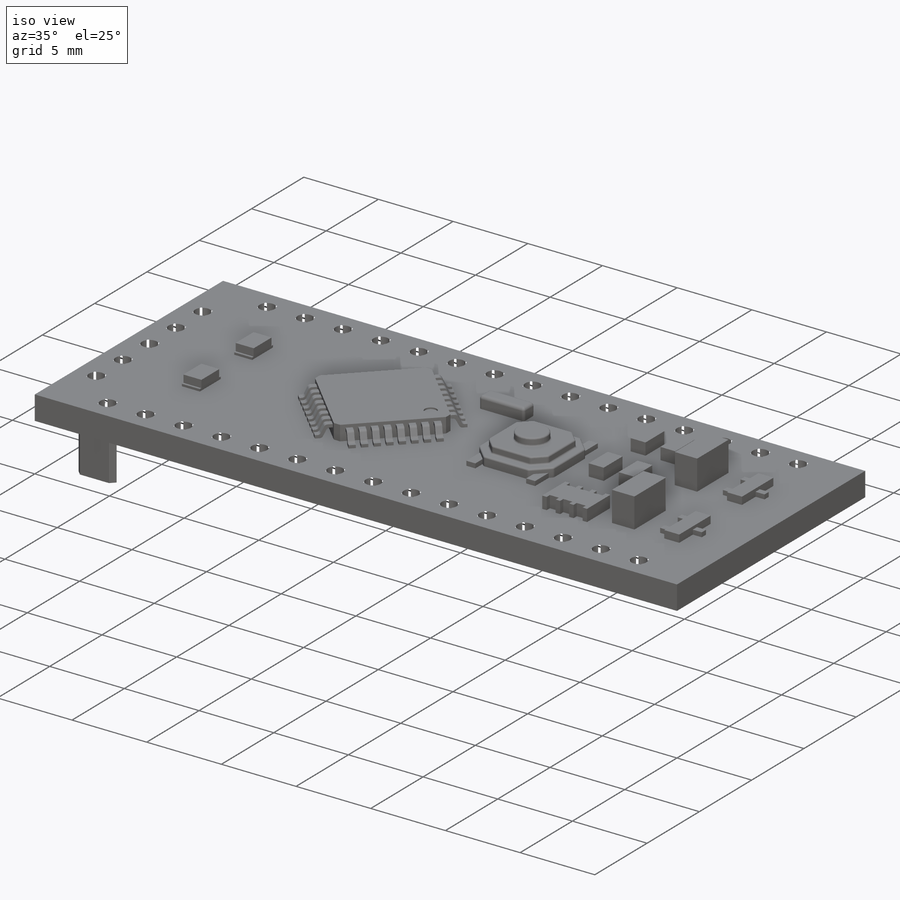
[diagram: iso view]
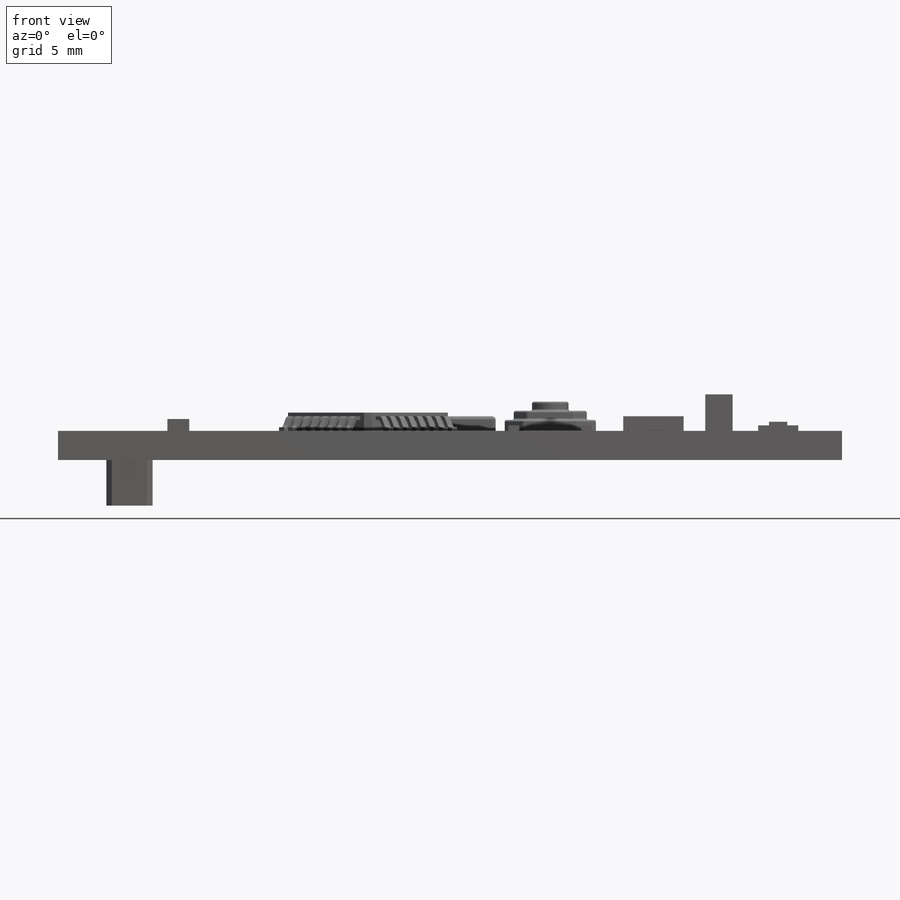
[diagram: front view]
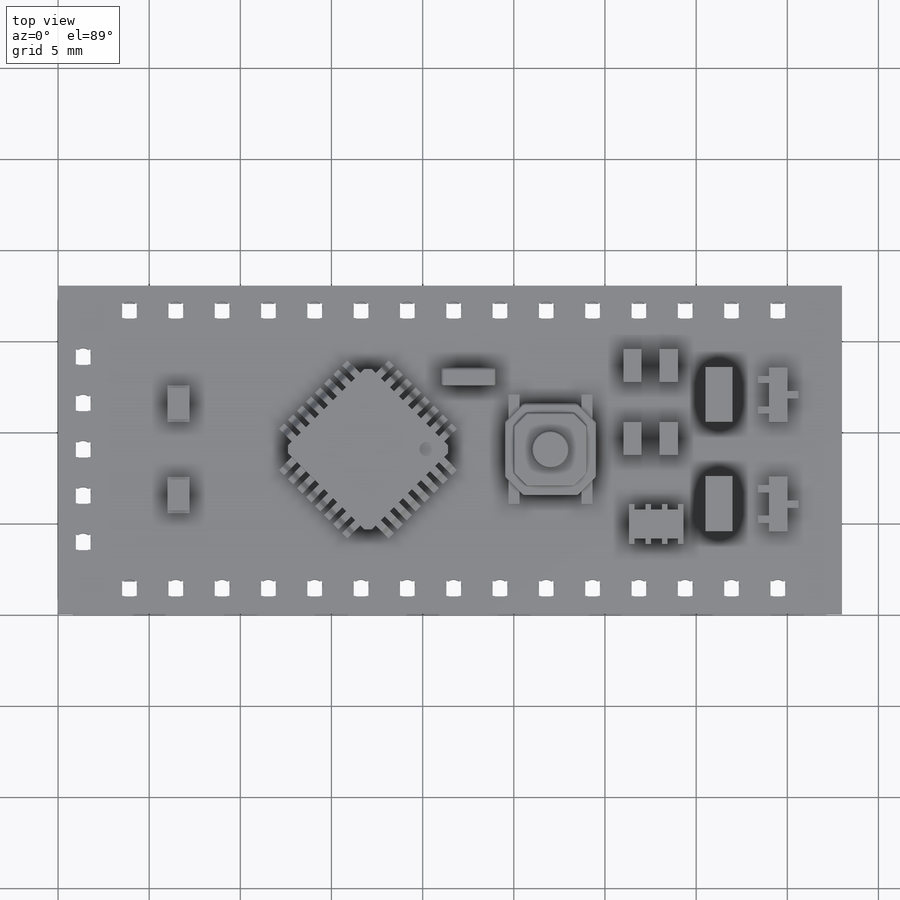
[diagram: top view]
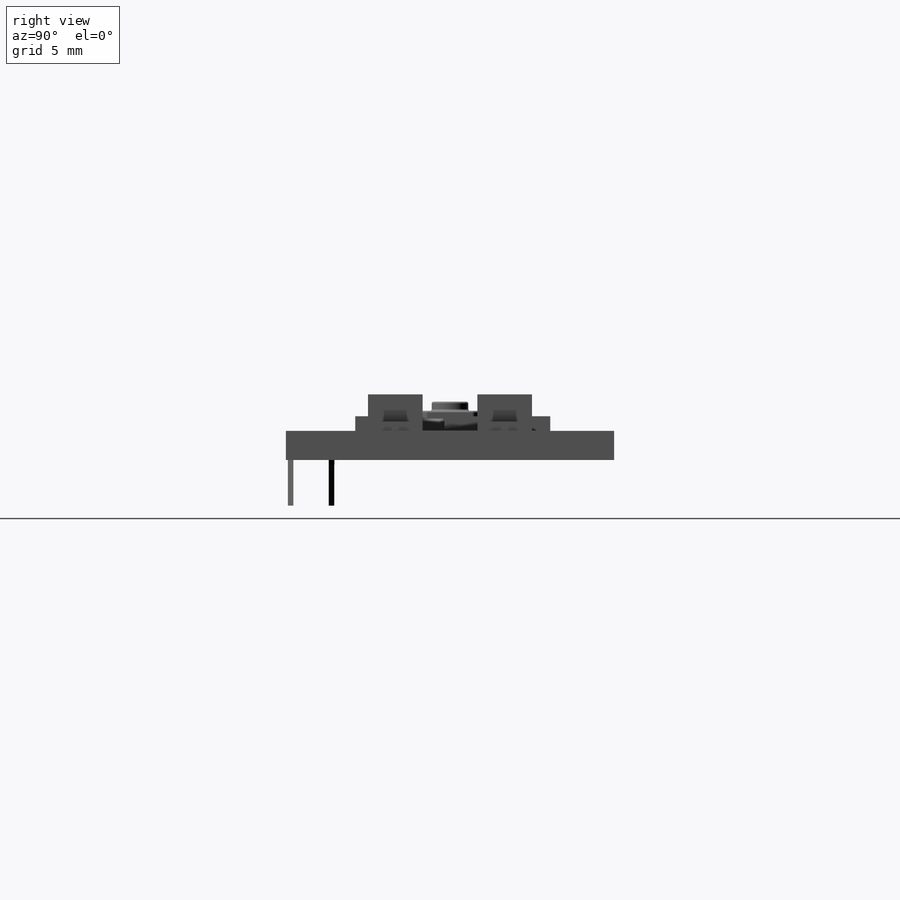
[diagram: right view]
SOLIDWORKS PART (.sldprt)
format: sldprt  version: not decoded by parser v0  size: 6,868,992 bytes
history: native  units: mm
features: sketch x22, extrude x19, plane x8, pattern_linear x6, fillet x4, chamfer x3, cut_extrude x2, material x1, pattern_circular x1 (+8 scaffold rows collapsed)
feature tree (74):
  scaffold x8  (default folders/planes/origin — collapsed)
  material  "材质 <未指定>"
  plane  "前视基准面"
  plane  "上视基准面"
  plane  "右视基准面"
  sketch  "草图1"  dims[D1=43.0mm D2=18.0mm]
  extrude  "凸台-拉伸1"  Depth=1.6mm
  sketch  "草图2"  dims[c1.D4=1.0mm c1.D7=1.0mm c1.D1=1.38mm c1.D2=1.2mm c1.D3=7.8mm c2.D2=7.62mm c2.D3=1.38mm c2.D8=2.54mm c2.D10=2.54mm c2.D5=3.0 c2.D6=3.0 c2.D9=15.0]
  cut_extrude  "切除-拉伸1"  Depth=1.6mm
  sketch  "草图3"  dims[D1=1.2mm D2=2.0mm D3=1.5mm D4=6.0mm]
  extrude  "凸台-拉伸2"  Depth=0.15mm
  sketch  "草图4"  dims[D1=6.5mm D2=6.5mm D3=17.0mm]
  extrude  "凸台-拉伸3"  Depth=1mm
  chamfer  "倒角1"  Distance=0.3mm Angle=45deg
  plane  "基准面2"  Offset=2.9mm
  sketch  "草图5"  dims[D6=0.2mm D1=0.3mm D2=0.4mm D3=~1.003777mm D4=0.6mm D5=0.2mm]
  extrude  "凸台-拉伸4"  Depth=0.4mm
  pattern_linear  "阵列(线性)1"  Count1=5 Count2=1 Spacing1=0.7mm Spacing2=10mm
  pattern_linear  "阵列(线性)2"  Count1=4 Count2=1 Spacing1=0.7mm Spacing2=10mm
  plane  "基准面4"
  plane  "基准面5"
  pattern_circular  "阵列(圆周)1"  Count=2 Angle=90deg
  sketch  "草图7"  dims[D5=0.15mm D1=3.0mm D2=1.0mm D3=4.5mm D4=21.0mm]
  extrude  "凸台-拉伸5"  Depth=0.8mm
  fillet  "圆角1"  Radius=0.2mm
  sketch  "草图8"  dims[D4=0.2mm D1=5.0mm D2=5.0mm D3=27.0mm]
  extrude  "凸台-拉伸6"  Depth=0.6mm
  sketch  "草图9"  dims[D2=0.2mm D1=0.5mm]
  extrude  "凸台-拉伸7"  Depth=0.5mm
  sketch  "草图10"  dims[D1=2.0mm]
  extrude  "凸台-拉伸8"  Depth=0.5mm
  sketch  "草图11"  dims[D1=1.5mm D2=1.5mm D3=0.6mm D4=1.7mm]
  extrude  "凸台-拉伸9"  Depth=0.3mm
  sketch  "草图12"  dims[D1=1.0mm D2=1.8mm D3=3.5mm D4=31.0mm D5=2.0 D6=2.0]
  extrude  "凸台-拉伸10"  Depth=0.8mm
  sketch  "草图13"  dims[D1=3.0mm D2=1.6mm D3=0.3mm D4=0.3mm D5=4.0]
  extrude  "凸台-拉伸12"  Depth=0.8mm
  sketch  "草图14"  dims[D1=3.0mm D2=1.5mm D3=1.5mm D4=35.5mm]
  extrude  "凸台-拉伸13"  Depth=2mm
  sketch  "草图15"  dims[D1=3.0mm D2=1.0mm D3=1.5mm D4=2.0mm]
  extrude  "凸台-拉伸14"  Depth=0.5mm
  sketch  "草图16"  dims[D1=1.2mm D2=1.2mm D3=0.4mm D4=0.4mm]
  extrude  "凸台-拉伸15"  Depth=0.3mm
  sketch  "草图17"  dims[D1=0.15mm D2=0.15mm D3=0.15mm D4=0.15mm]
  extrude  "凸台-拉伸16"  Depth=0.5mm
  sketch  "草图18"  dims[D37=1.8mm D38=1.8mm D1=0.0mm D2=0.0mm D3=0.0mm D4=0.0mm D5=0.0mm D6=0.0mm D7=0.0mm D8=0.0mm D9=0.0mm D10=0.0mm D11=0.0mm D12=0.0mm D13=0.0mm D14=0.0mm D15=0.0mm D16=0.0mm D17=0.0mm D18=0.0mm D19=0.0mm D20=0.0mm D21=0.0mm D22=0.0mm D23=0.0mm D24=0.0mm D25=0.0mm D26=0.0mm D27=0.0mm D28=0.0mm D29=0.0mm D30=0.0mm D31=0.0mm D32=0.0mm D33=0.0mm D34=0.0mm D35=0.0mm D36=0.4mm]
  sketch  "草图19"
  cut_extrude  "切除-拉伸2"  Depth=0.1mm
  fillet  "圆角2"  Radius=0.1mm
  fillet  "圆角4"  Radius=0.1mm
  fillet  "圆角5"  Radius=0.1mm
  sketch  "草图21"  dims[D1=2.54mm D2=2.54mm]
  extrude  "凸台-拉伸18"  Depth=2.5mm
  pattern_linear  "阵列(线性)3"  Count1=15 Count2=2 Spacing1=2.54mm Spacing2=15.24mm
  sketch  "草图22"  dims[D1=2.54mm D2=2.54mm]
  extrude  "凸台-拉伸19"  Depth=2.5mm
  pattern_linear  "阵列(线性)4"  Count1=5 Count2=1 Spacing1=2.54mm Spacing2=15.24mm
  plane  "基准面6"  Offset=1mm
  plane  "基准面7"  Offset=8.4mm
  sketch  "草图24"  dims[D1=0.8mm]
  extrude  "凸台-拉伸21"  Depth=11mm
  sketch  "草图23"  dims[D1=0.8mm]
  extrude  "凸台-拉伸20"  Depth=11mm
  chamfer  "倒角2"  Distance=0.2mm Angle=45deg
  pattern_linear  "阵列(线性)5"  Count1=15 Count2=2 Spacing1=2.54mm Spacing2=15.24mm
  chamfer  "倒角3"  Distance=0.2mm Angle=45deg
  pattern_linear  "阵列(线性)6"  Count1=5 Count2=1 Spacing1=2.54mm Spacing2=15.24mm
decode coverage: 56 of 57 modeling features carry decoded parameters
note: ~ marks probable driven/reference dimensions
note: suppression state not decoded; provenance and decode notes live in map.json
